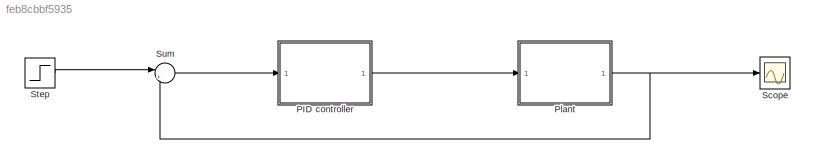
MODEL slx_feb8cbbf5935
KIND model
CONFIG AbsTol = auto
CONFIG EnableMultiTasking = off
CONFIG FixedStep = auto
CONFIG MaxStep = auto
CONFIG MinStep = auto
CONFIG RelTol = 1e-3
CONFIG SampleTimeConstraint = Unconstrained
CONFIG SolverName = VariableStepAuto
CONFIG StartTime = 0.0
CONFIG StopTime = 120
WORKSPACE source: mxarray member
WORKSPACE B = 50
WORKSPACE Kd = 484.0516
WORKSPACE Ki = 83.0917
WORKSPACE Kp = 495.0505
WORKSPACE M = 1000
WORKSPACE u = 500
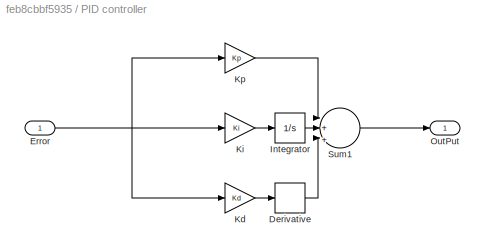
BLOCK [SubSystem] PID controller
  Ports = [1, 1]
  RequestExecContextInheritance = off
  TreatAsAtomicUnit = on
BLOCK [Derivative] PID controller/Derivative
BLOCK [Inport] PID controller/Error
  OutDataTypeStr = double
  PortDimensions = 1
  SampleTime = 0
  SamplingMode = Sample based
  SignalType = real
BLOCK [Integrator] PID controller/Integrator
  Ports = [1, 1]
BLOCK [Gain] PID controller/Kd
  Gain = Kd
BLOCK [Gain] PID controller/Ki
  Gain = Ki
BLOCK [Gain] PID controller/Kp
  Gain = Kp
BLOCK [Outport] PID controller/OutPut
  OutDataTypeStr = double
  PortDimensions = 1
  SampleTime = 0
  SamplingMode = Sample based
  SignalType = real
BLOCK [Sum] PID controller/Sum1
  Inputs = |+|+|+|
  Ports = [3, 1]
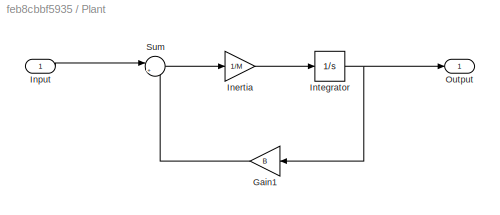
BLOCK [SubSystem] Plant
  Ports = [1, 1]
  RequestExecContextInheritance = off
BLOCK [Gain] Plant/Gain1
  Gain = B
  NameLocation = top
BLOCK [Gain] Plant/Inertia
  Gain = 1/M
BLOCK [Inport] Plant/Input
BLOCK [Integrator] Plant/Integrator
  Ports = [1, 1]
BLOCK [Outport] Plant/Output
BLOCK [Sum] Plant/Sum
  Inputs = |+-
  Ports = [2, 1]
BLOCK [Scope] Scope
  Floating = off
  NumInputPorts = 1
  Ports = [1]
  ScopeSpecificationString = Simulink.scopes.TimeScopeBlockCfg('CurrentConfiguration', extmgr.ConfigurationSet(extmgr.Configuration('Core','General UI',true),extmgr.Configuration('Core','Source UI',true),extmgr.Configuration('Sources','WiredSimulink',true),extmgr.Configuration('Visuals','Time Domain',true,'SerializedDisplays',{struct('MinYLimReal','-1.42616','MaxYLimReal','12.8354','YLabelReal','','MinYLimMag','0.00000','MaxY...<+1425ch>
BLOCK [Step] Step
  After = 500
  SampleTime = 0
BLOCK [Sum] Sum
  Inputs = |+-
  Ports = [2, 1]
LINE PID controller/Derivative:1 -> PID controller/Sum1:3
NET PID controller/Error:1 -> PID controller/Kd:1, PID controller/Ki:1, PID controller/Kp:1
LINE PID controller/Integrator:1 -> PID controller/Sum1:2
LINE PID controller/Kd:1 -> PID controller/Derivative:1
LINE PID controller/Ki:1 -> PID controller/Integrator:1
LINE PID controller/Kp:1 -> PID controller/Sum1:1
LINE PID controller/Sum1:1 -> PID controller/OutPut:1
LINE PID controller:1 -> Plant:1
LINE Plant/Gain1:1 -> Plant/Sum:2
LINE Plant/Inertia:1 -> Plant/Integrator:1
LINE Plant/Input:1 -> Plant/Sum:1
NET Plant/Integrator:1 -> Plant/Gain1:1, Plant/Output:1
LINE Plant/Sum:1 -> Plant/Inertia:1
NET Plant:1 -> Scope:1, Sum:2
LINE Step:1 -> Sum:1
LINE Sum:1 -> PID controller:1
note: NET lines group one-source signal fan-out (src -> all destinations, sorted); 1:1 wires keep LINE
